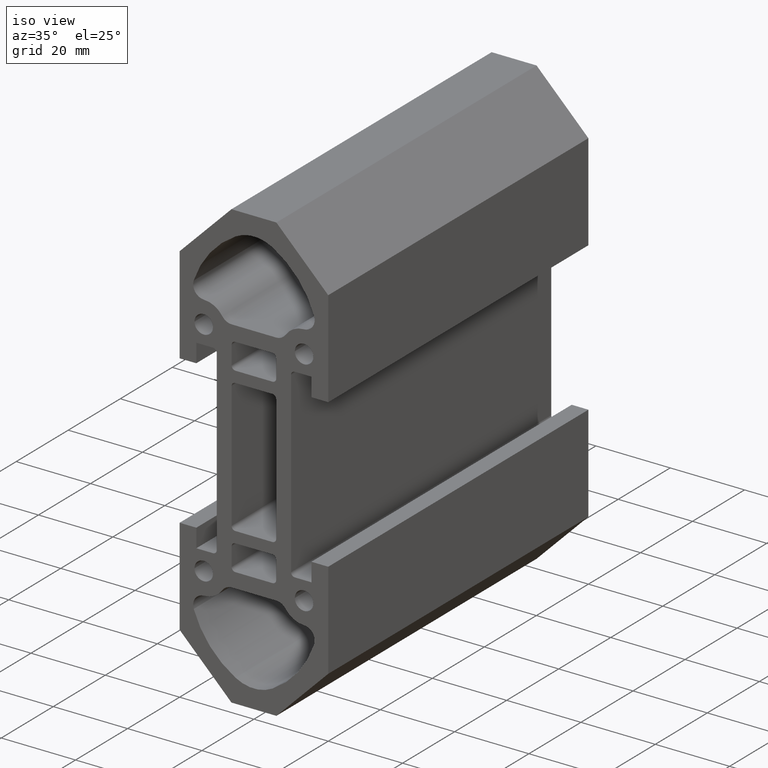
[diagram: clean part render]
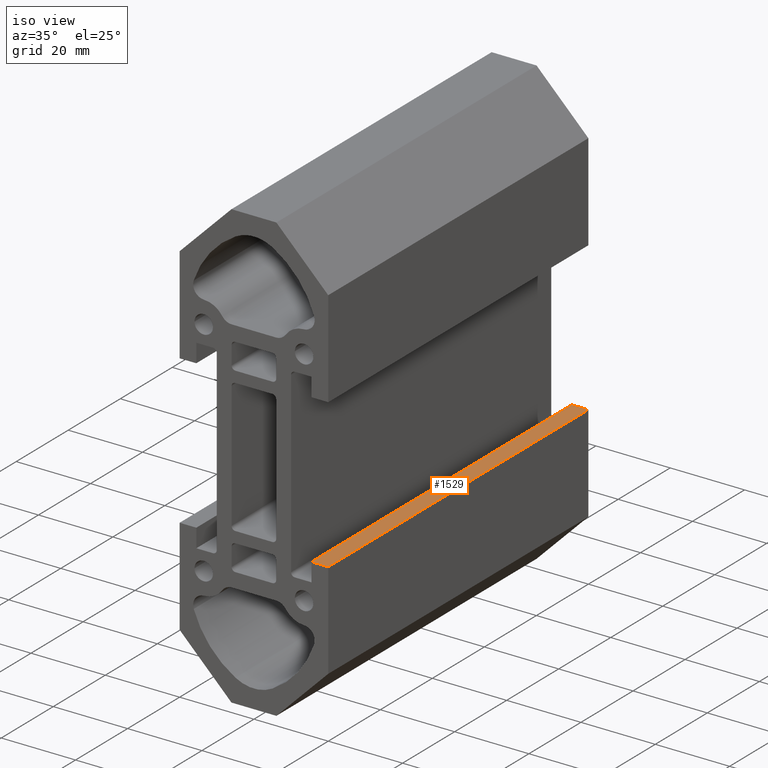
[diagram: same view with one face highlighted and labeled with its STEP entity id]
A machine part, iso view. The second image highlights one B-rep face of the part: STEP entity #1529.
In plain terms, the highlighted planar face has unit normal (0, 0, -1).
Its self-contained STEP definition (entity closure, byte-faithful):
#42=PLANE('',#1668);
#101=FACE_OUTER_BOUND('',#179,.T.);
#179=EDGE_LOOP('',(#1119,#1120,#1121,#1122));
#294=LINE('',#2394,#446);
#296=LINE('',#2398,#448);
#297=LINE('',#2400,#449);
#298=LINE('',#2401,#450);
#446=VECTOR('',#1937,10.);
#448=VECTOR('',#1941,10.);
#449=VECTOR('',#1942,10.);
#450=VECTOR('',#1943,10.);
#687=VERTEX_POINT('',#2391);
#688=VERTEX_POINT('',#2393);
#689=VERTEX_POINT('',#2397);
#690=VERTEX_POINT('',#2399);
#864=EDGE_CURVE('',#687,#688,#294,.T.);
#866=EDGE_CURVE('',#689,#687,#296,.T.);
#867=EDGE_CURVE('',#689,#690,#297,.T.);
#868=EDGE_CURVE('',#690,#688,#298,.T.);
#1119=ORIENTED_EDGE('',*,*,#866,.F.);
#1120=ORIENTED_EDGE('',*,*,#867,.T.);
#1121=ORIENTED_EDGE('',*,*,#868,.T.);
#1122=ORIENTED_EDGE('',*,*,#864,.F.);
#1529=ADVANCED_FACE('',(#101),#42,.F.);
#1668=AXIS2_PLACEMENT_3D('',#2396,#1939,#1940);
#1937=DIRECTION('',(0.,1.,0.));
#1939=DIRECTION('center_axis',(0.,0.,-1.));
#1940=DIRECTION('ref_axis',(-1.,0.,0.));
#1941=DIRECTION('',(-1.,0.,0.));
#1942=DIRECTION('',(0.,1.,0.));
#1943=DIRECTION('',(-1.,0.,0.));
#2391=CARTESIAN_POINT('',(15.5,0.,-20.));
#2393=CARTESIAN_POINT('',(15.5,100.,-20.));
#2394=CARTESIAN_POINT('',(15.5,0.,-20.));
#2396=CARTESIAN_POINT('Origin',(20.,0.,-20.));
#2397=CARTESIAN_POINT('',(20.,0.,-20.));
#2398=CARTESIAN_POINT('',(20.,0.,-20.));
#2399=CARTESIAN_POINT('',(20.,100.,-20.));
#2400=CARTESIAN_POINT('',(20.,0.,-20.));
#2401=CARTESIAN_POINT('',(20.,100.,-20.));